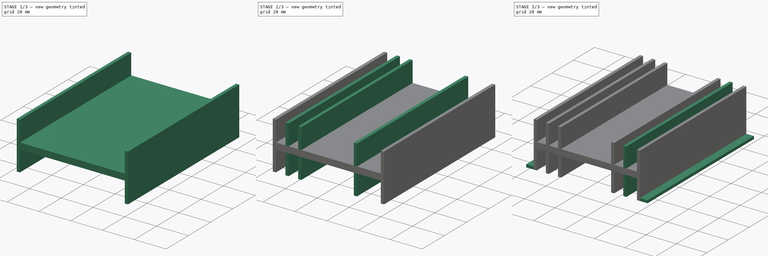
[diagram: build sequence overview — one tinted view per stage of 3, left to right]
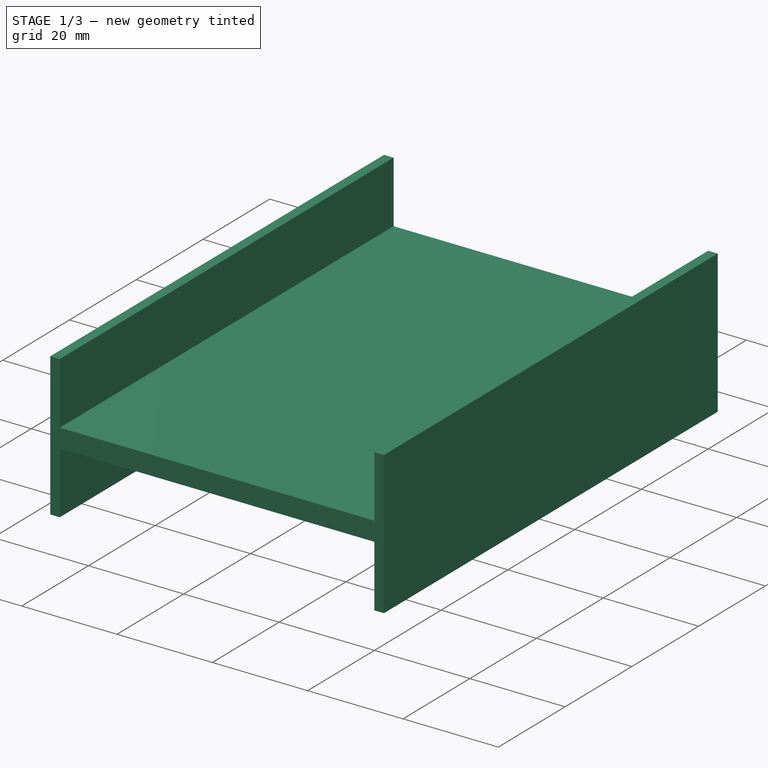
[diagram: stage 1 of 3 — iso view after this stage's code; geometry added in this stage tinted green]
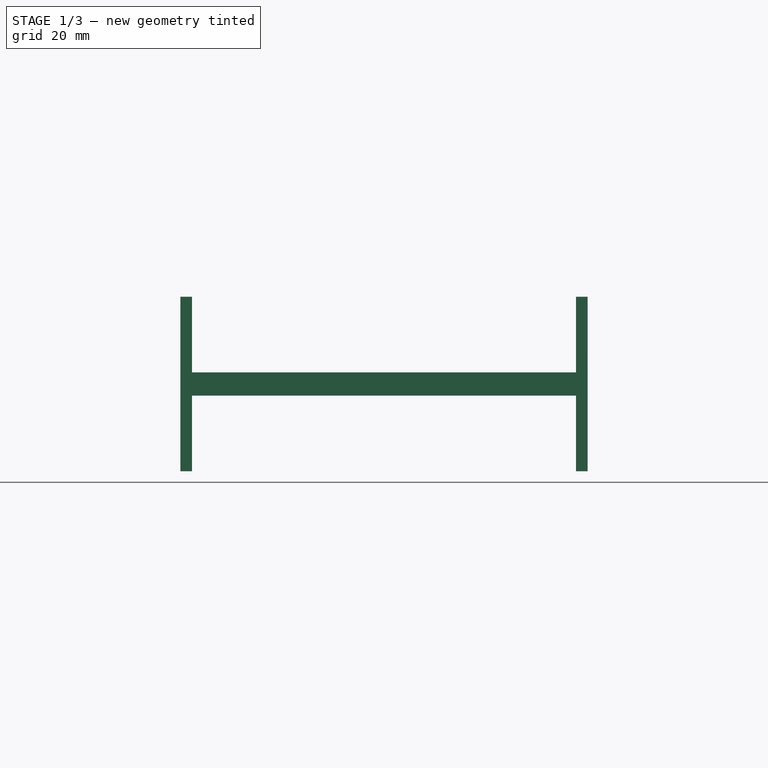
[diagram: stage 1 of 3 — front view after this stage's code; geometry added in this stage tinted green]
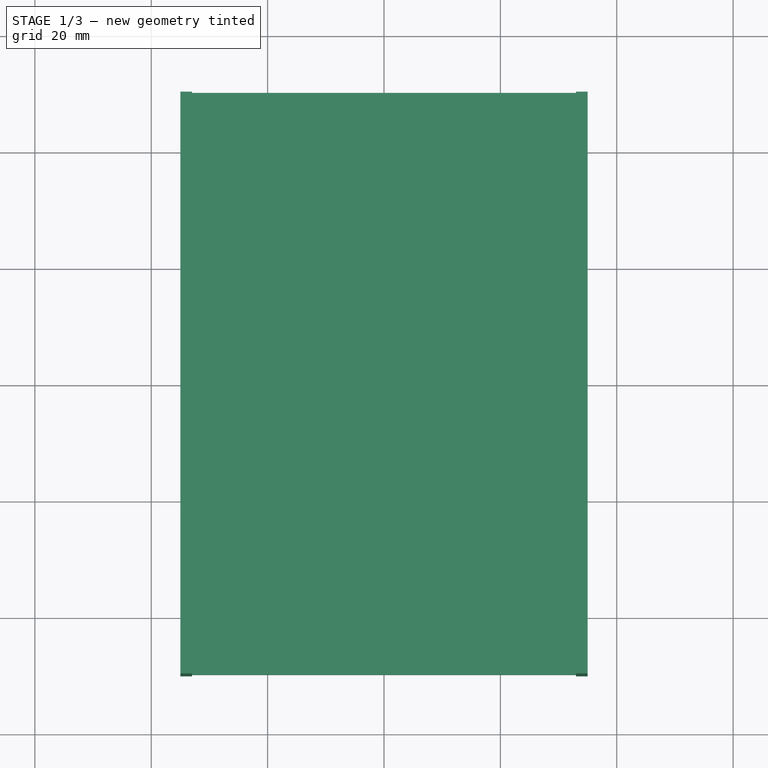
[diagram: stage 1 of 3 — top view after this stage's code; geometry added in this stage tinted green]
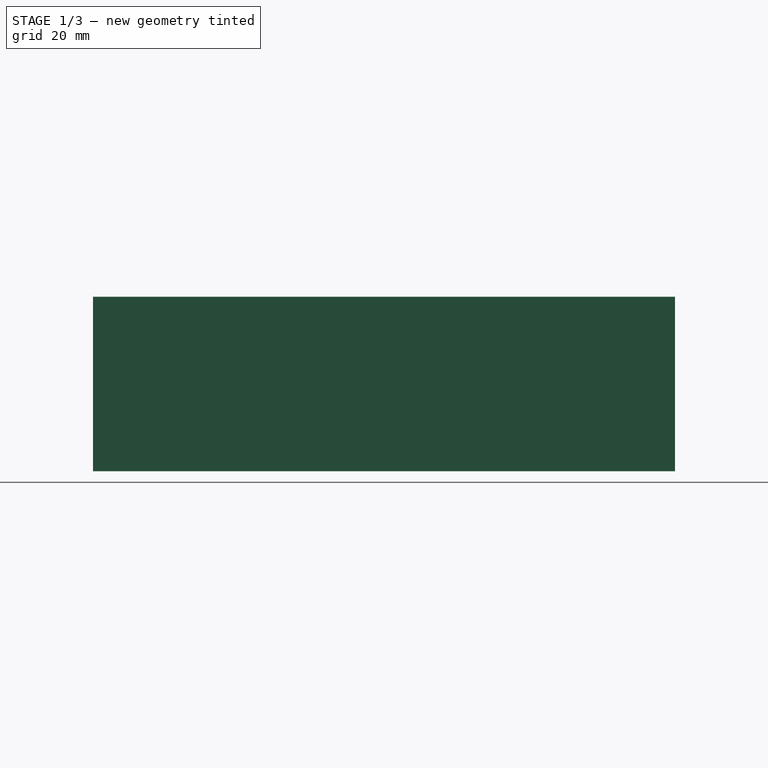
[diagram: stage 1 of 3 — right view after this stage's code; geometry added in this stage tinted green]
FCSTD DOCUMENT  (FreeCAD 0.17R13541 (Git))
Label: Disipador
License: All rights reserved
LicenseURL: http://en.wikipedia.org/wiki/All_rights_reserved
objects: Sketcher::SketchObject×3, PartDesign::Pad×3, PartDesign::LinearPattern×3, PartDesign::Mirrored×2, PartDesign::Body×1
note: 15 computed .brp shape members not serialized (recipe doc carries the construction recipe); baked Part::Feature solids carry a one-line shape summary decoded from their .brp

FEATURE [Sketcher::SketchObject] Sketch001
  MapMode = 5
  Support = -> [XY_Plane001]
  sketch-geometry (4):
    g0: LineSegment StartX=-35 StartY=-50 StartZ=0 EndX=35 EndY=-50 EndZ=0
    g1: LineSegment StartX=35 StartY=-50 StartZ=0 EndX=35 EndY=50 EndZ=0
    g2: LineSegment StartX=35 StartY=50 StartZ=0 EndX=-35 EndY=50 EndZ=0
    g3: LineSegment StartX=-35 StartY=50 StartZ=0 EndX=-35 EndY=-50 EndZ=0
  constraints (12):
    c: Coincident(g0,g1)
    c: Coincident(g1,g2)
    c: Coincident(g2,g3)
    c: Coincident(g3,g0)
    c: Horizontal(g0)
    c: Horizontal(g2)
    c: Vertical(g1)
    c: Vertical(g3)
    c: DistanceY(g1,g1) = 100
    c: DistanceX(g0,g0) = 70
    c: Symmetric(g0,g0,g-2)
    c: Symmetric(g1,g0,g-1)
FEATURE [PartDesign::Pad] Pad
  Length = 4
  Length2 = 100
  Profile = -> Sketch001
  Type = 0
FEATURE [Sketcher::SketchObject] Sketch
  MapMode = 5
  Placement = pos=(0,0,0) rot=(1,0,0;1.5708rad)
  Support = -> [XZ_Plane001]
  sketch-geometry (4):
    g0: LineSegment StartX=-35 StartY=17 StartZ=0 EndX=-33 EndY=17 EndZ=0
    g1: LineSegment StartX=-33 StartY=17 StartZ=0 EndX=-33 EndY=-13 EndZ=0
    g2: LineSegment StartX=-33 StartY=-13 StartZ=0 EndX=-35 EndY=-13 EndZ=0
    g3: LineSegment StartX=-35 StartY=-13 StartZ=0 EndX=-35 EndY=17 EndZ=0
  constraints (12):
    c: Coincident(g0,g1)
    c: Coincident(g1,g2)
    c: Coincident(g2,g3)
    c: Coincident(g3,g0)
    c: Horizontal(g0)
    c: Horizontal(g2)
    c: Vertical(g1)
    c: Vertical(g3)
    c: DistanceX(g0,g0) = 2
    c: DistanceY(g1,g1) = 30
    c: DistanceX(g1,g-1) = 33
    c: DistanceY(g1,g-1) = 13
FEATURE [PartDesign::Pad] Pad001
  BaseFeature = -> Pad
  Length = 50
  Length2 = 50
  Profile = -> Sketch
  Type = 4
FEATURE [PartDesign::Mirrored] Mirrored
  BaseFeature = -> Pad001
  MirrorPlane = -> Sketch [V_Axis]
  Originals = -> [Pad001]
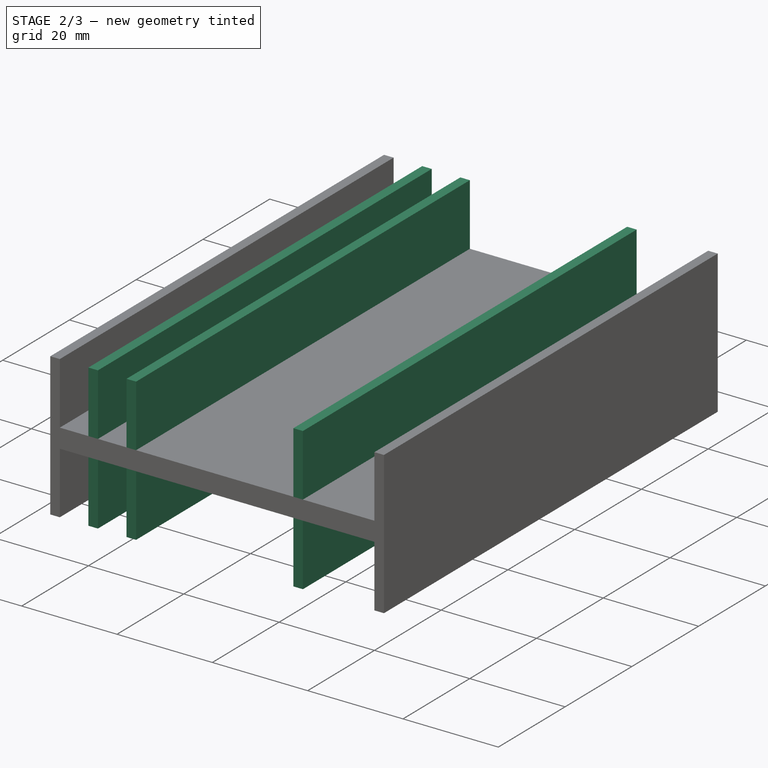
[diagram: stage 2 of 3 — iso view after this stage's code; geometry added in this stage tinted green]
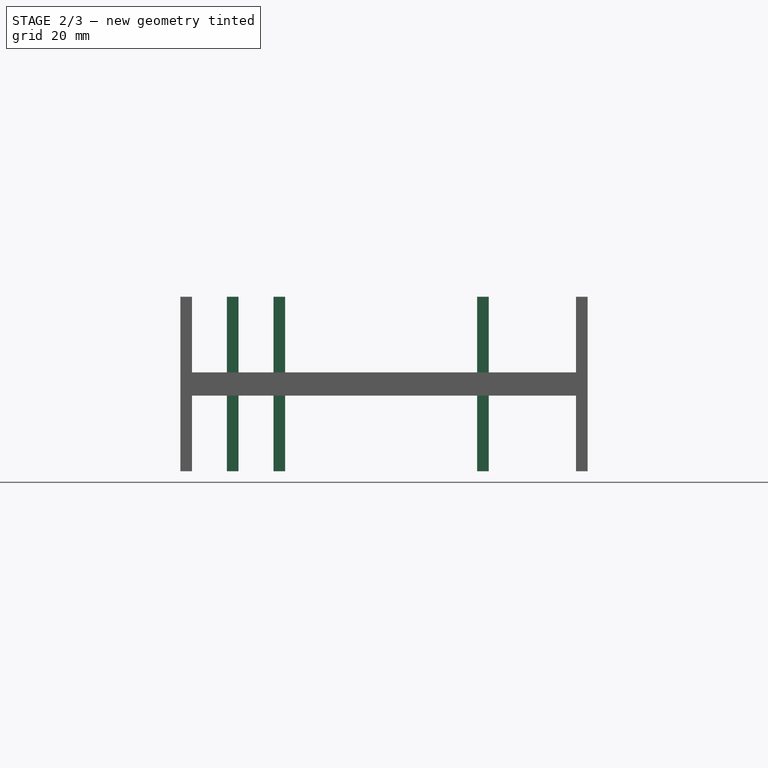
[diagram: stage 2 of 3 — front view after this stage's code; geometry added in this stage tinted green]
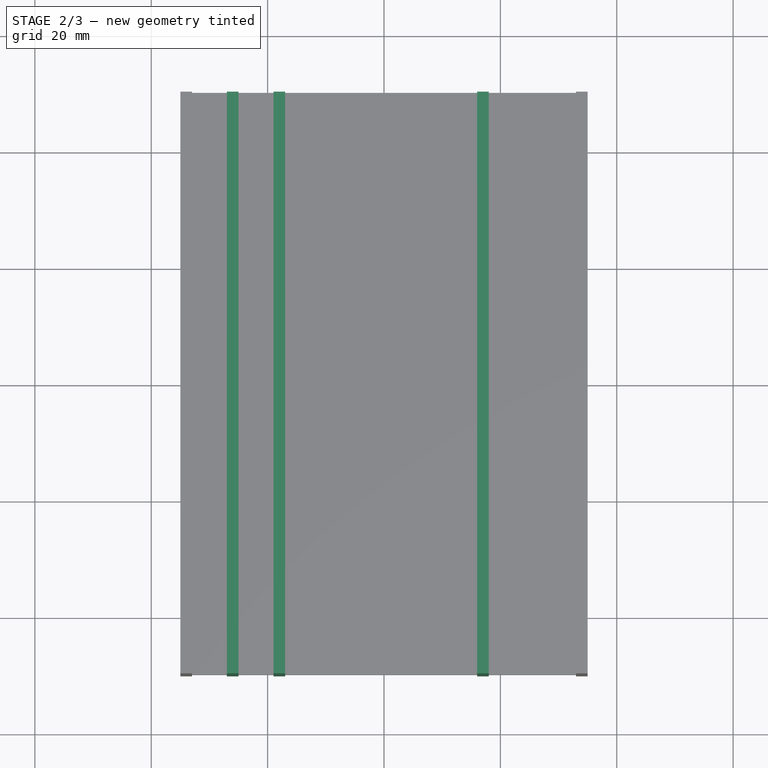
[diagram: stage 2 of 3 — top view after this stage's code; geometry added in this stage tinted green]
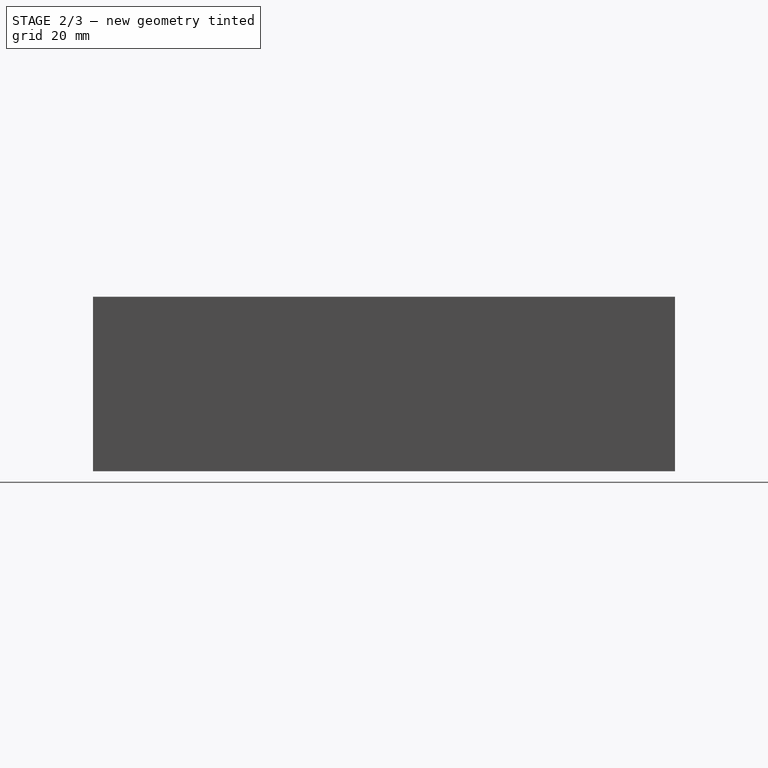
[diagram: stage 2 of 3 — right view after this stage's code; geometry added in this stage tinted green]
FEATURE [PartDesign::LinearPattern] LinearPattern
  BaseFeature = -> Mirrored
  Direction = -> Sketch [H_Axis]
  Length = 16
  Occurrences = 3
  Originals = -> [Pad001]
FEATURE [PartDesign::LinearPattern] LinearPattern001
  BaseFeature = -> LinearPattern
  Direction = -> Sketch [H_Axis]
  Length = 51
  Occurrences = 2
  Originals = -> [Pad001]
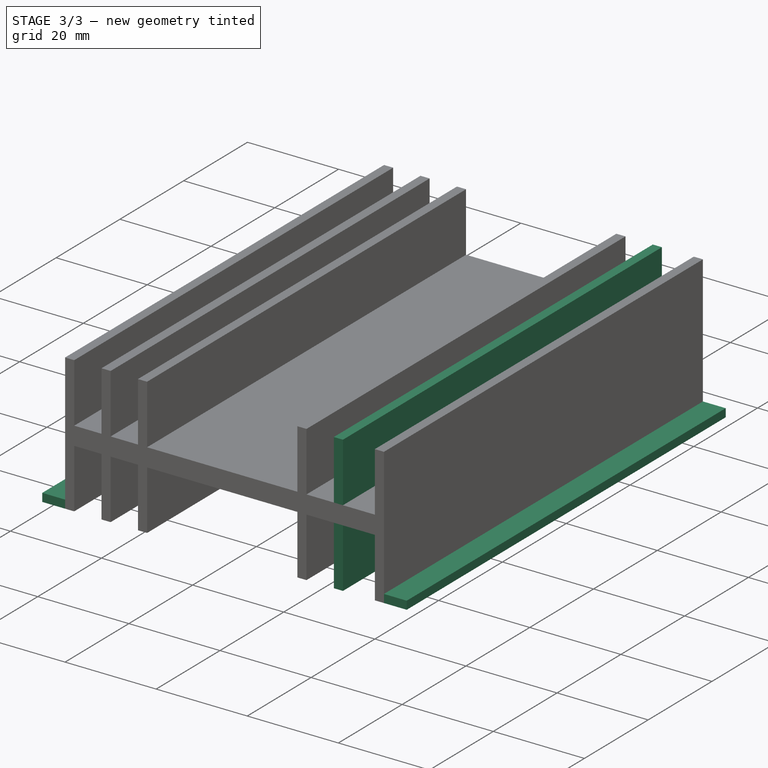
[diagram: stage 3 of 3 — iso view after this stage's code; geometry added in this stage tinted green]
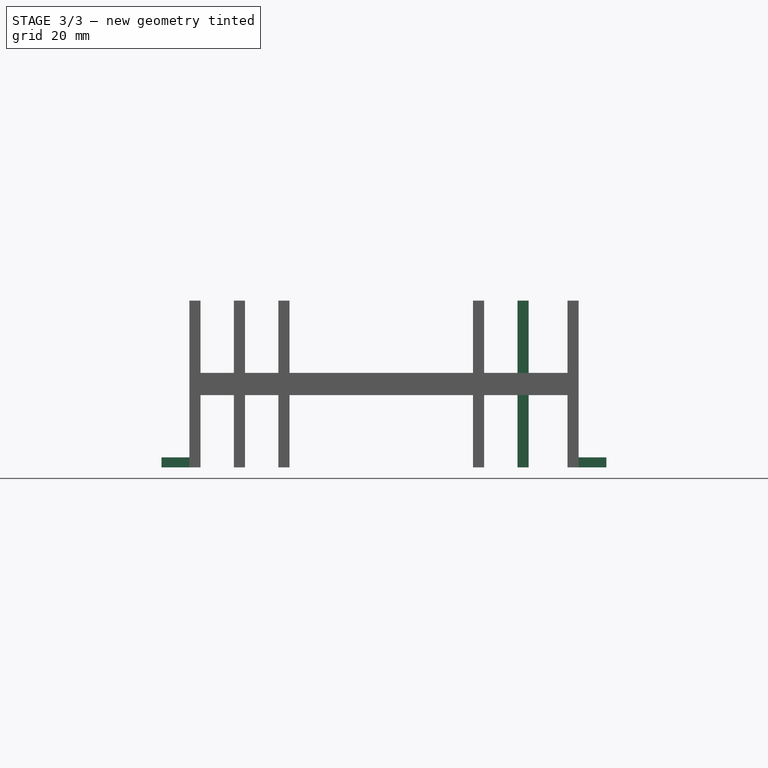
[diagram: stage 3 of 3 — front view after this stage's code; geometry added in this stage tinted green]
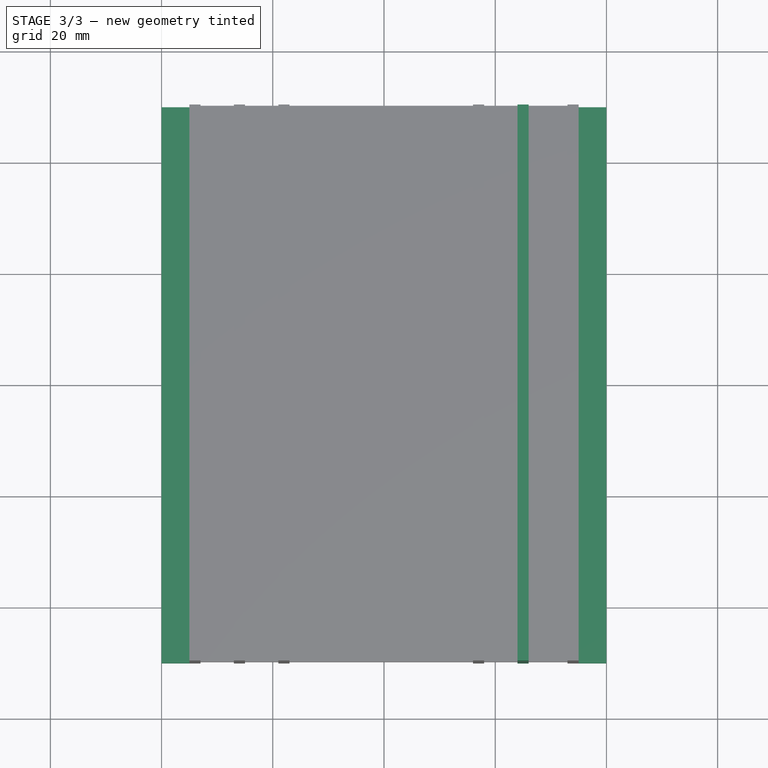
[diagram: stage 3 of 3 — top view after this stage's code; geometry added in this stage tinted green]
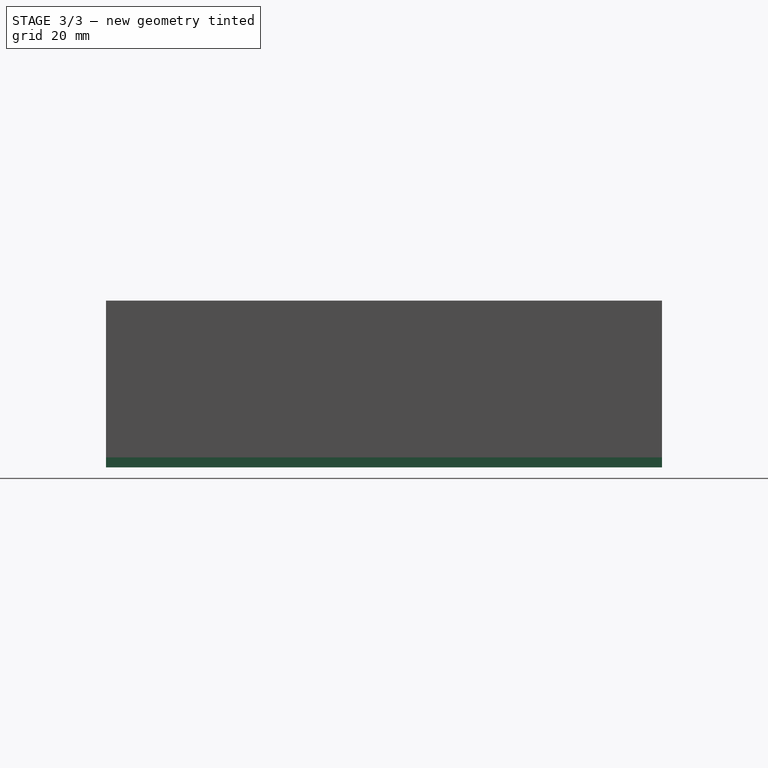
[diagram: stage 3 of 3 — right view after this stage's code; geometry added in this stage tinted green]
FEATURE [PartDesign::LinearPattern] LinearPattern002
  BaseFeature = -> LinearPattern001
  Direction = -> Sketch [H_Axis]
  Length = 59
  Occurrences = 2
  Originals = -> [Pad001]
FEATURE [Sketcher::SketchObject] Sketch002
  MapMode = 5
  Placement = pos=(0,0,0) rot=(1,0,0;1.5708rad)
  Support = -> [XZ_Plane001]
  sketch-geometry (4):
    g0: LineSegment StartX=40 StartY=-13 StartZ=0 EndX=33 EndY=-13 EndZ=0
    g1: LineSegment StartX=33 StartY=-13 StartZ=0 EndX=33 EndY=-11.2 EndZ=0
    g2: LineSegment StartX=33 StartY=-11.2 StartZ=0 EndX=40 EndY=-11.2 EndZ=0
    g3: LineSegment StartX=40 StartY=-11.2 StartZ=0 EndX=40 EndY=-13 EndZ=0
  constraints (12):
    c: Coincident(g0,g1)
    c: Coincident(g1,g2)
    c: Coincident(g2,g3)
    c: Coincident(g3,g0)
    c: Horizontal(g0)
    c: Horizontal(g2)
    c: Vertical(g1)
    c: Vertical(g3)
    c: DistanceX(g0,g0) = 7
    c: DistanceY(g3,g3) = 1.8
    c: DistanceX(g-1,g1) = 33
    c: DistanceY(g0,g-1) = 13
FEATURE [PartDesign::Pad] Pad002
  BaseFeature = -> LinearPattern002
  Length = 50
  Length2 = 50
  Profile = -> Sketch002
  Type = 4
FEATURE [PartDesign::Mirrored] Mirrored001
  BaseFeature = -> Pad002
  MirrorPlane = -> Sketch002 [V_Axis]
  Originals = -> [Pad002]
FEATURE [PartDesign::Body] Body001
  Group = -> [Sketch001,Pad,Sketch,Pad001,Mirrored,LinearPattern,LinearPattern001,LinearPattern002,Sketch002,Pad002,Mirrored001]
  Origin = -> Origin001
  Tip = -> Mirrored001
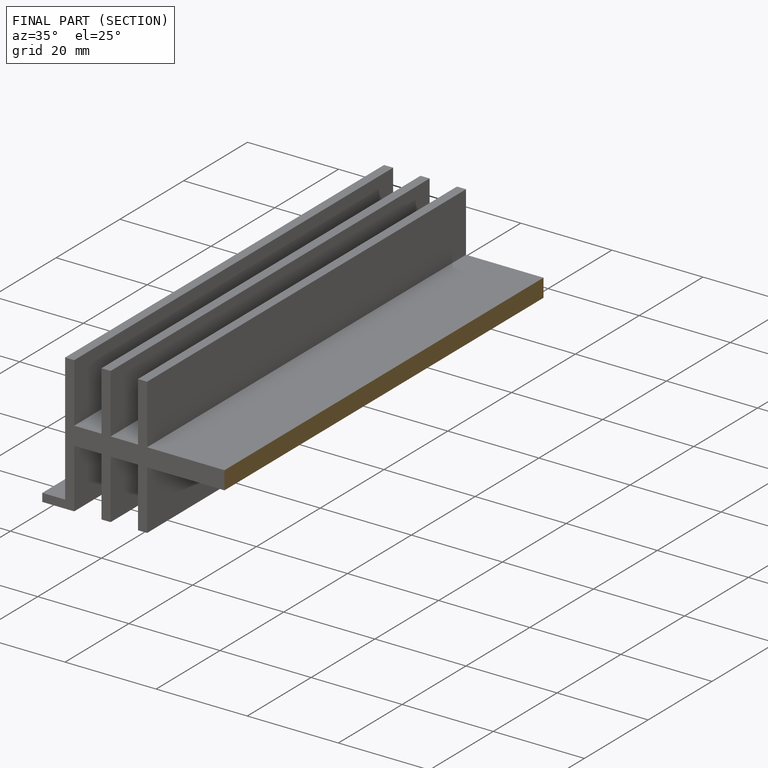
[diagram: finished part — half-section view (interior)]
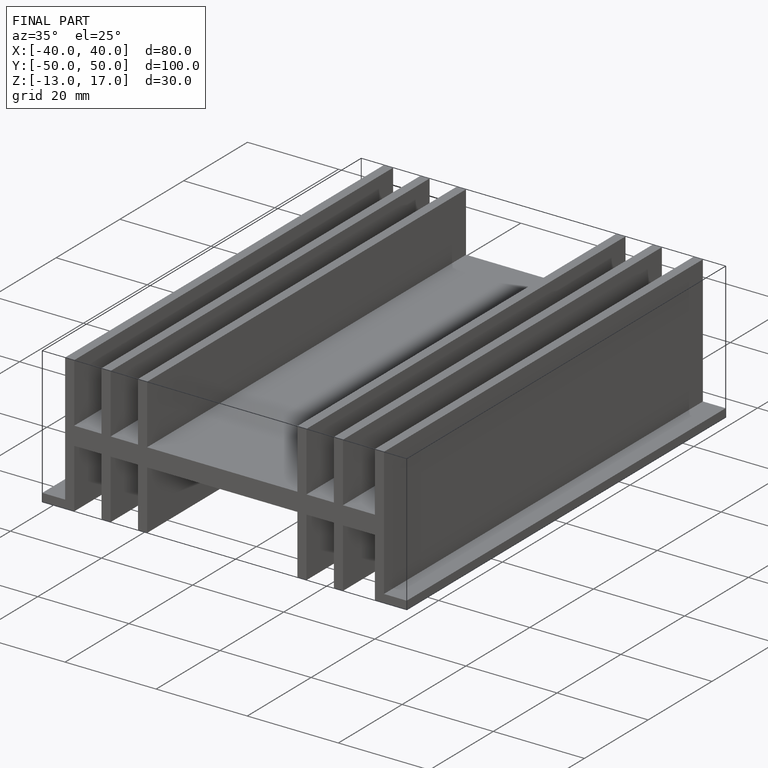
[diagram: finished part — iso view with bounding-box wireframe]
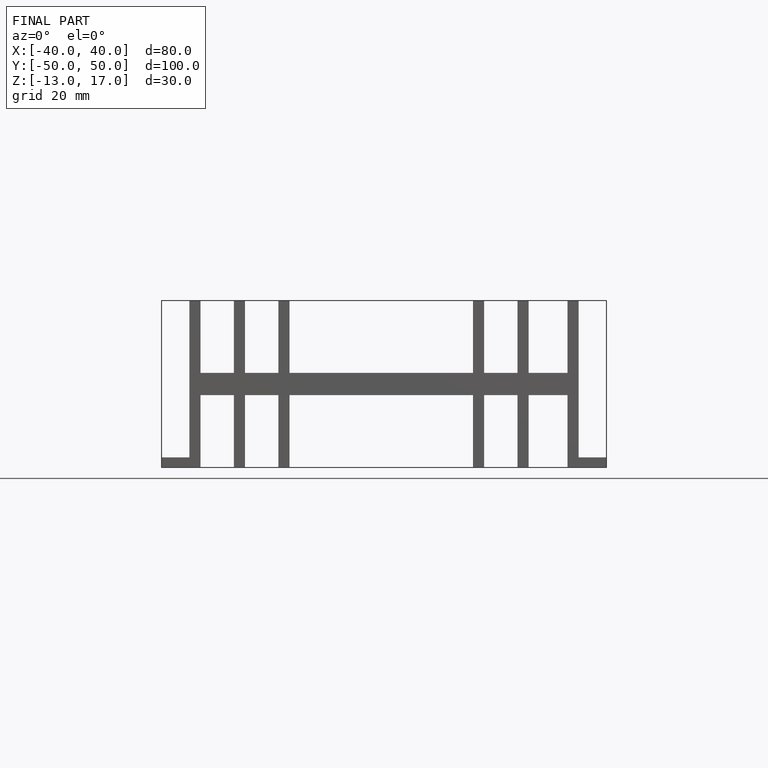
[diagram: finished part — front view with bounding-box wireframe]
